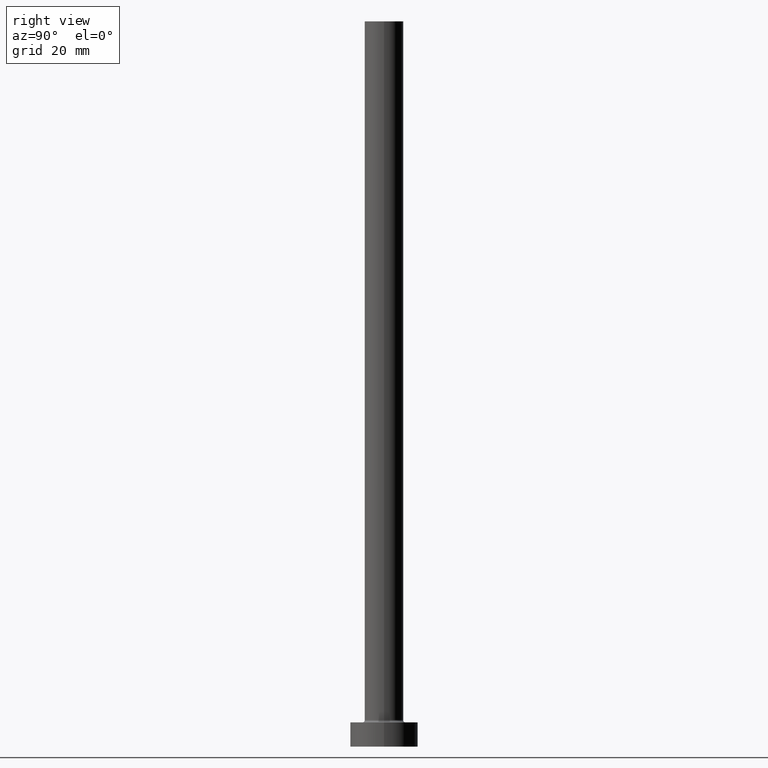
[diagram: clean part render]
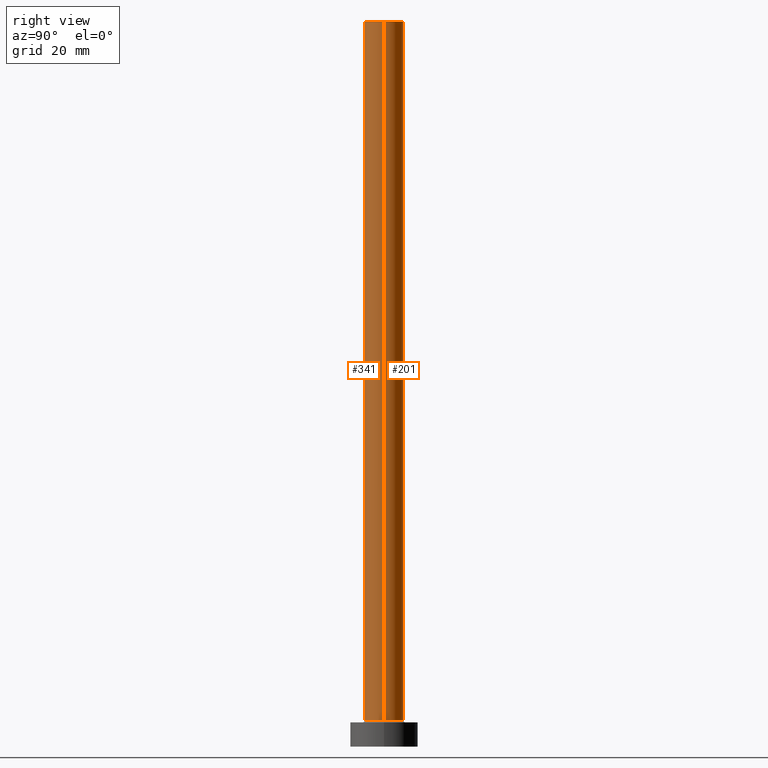
[diagram: same view with one multi-face feature highlighted, each face labeled with its STEP entity id]
A machine part, right view. The highlighted faces form ONE feature: a constant-radius fillet chain: 2 tangent blend faces with common blend radius 4 mm. The faces share edges in the B-rep.
Their STEP definitions:
[1] entity #341 (Cylinder):
#6 = DIRECTION ( 'NONE',  ( 0.000000000000000000, 0.000000000000000000, 1.000000000000000000 ) ) ;
#7 = AXIS2_PLACEMENT_3D ( 'NONE', #320, #432, #176 ) ;
#8 = VERTEX_POINT ( 'NONE', #226 ) ;
#13 = CIRCLE ( 'NONE', #411, 4.000000000000000000 ) ;
#22 = CARTESIAN_POINT ( 'NONE',  ( 0.000000000000000000, 0.000000000000000000, 5.500000000000005329 ) ) ;
#30 = AXIS2_PLACEMENT_3D ( 'NONE', #22, #419, #59 ) ;
#32 = CARTESIAN_POINT ( 'NONE',  ( -4.000000000000000000, 0.000000000000000000, 5.500000000000005329 ) ) ;
#37 = FACE_OUTER_BOUND ( 'NONE', #185, .T. ) ;
#41 = CARTESIAN_POINT ( 'NONE',  ( 0.000000000000000000, 0.000000000000000000, 150.0000000000000000 ) ) ;
#59 = DIRECTION ( 'NONE',  ( 1.000000000000000000, 0.000000000000000000, 0.000000000000000000 ) ) ;
#69 = LINE ( 'NONE', #181, #316 ) ;
#73 = LINE ( 'NONE', #244, #139 ) ;
#90 = ORIENTED_EDGE ( 'NONE', *, *, #255, .T. ) ;
#112 = ORIENTED_EDGE ( 'NONE', *, *, #293, .F. ) ;
#139 = VECTOR ( 'NONE', #393, 1000.000000000000000 ) ;
#171 = VERTEX_POINT ( 'NONE', #32 ) ;
#176 = DIRECTION ( 'NONE',  ( -1.000000000000000000, 0.000000000000000000, 0.000000000000000000 ) ) ;
#181 = CARTESIAN_POINT ( 'NONE',  ( 4.000000000000000000, 4.898587196589412829E-16, 150.0000000000000000 ) ) ;
#184 = DIRECTION ( 'NONE',  ( 1.000000000000000000, 0.000000000000000000, 0.000000000000000000 ) ) ;
#185 = EDGE_LOOP ( 'NONE', ( #206, #112, #90, #424 ) ) ;
#189 = EDGE_CURVE ( 'NONE', #171, #8, #348, .T. ) ;
#206 = ORIENTED_EDGE ( 'NONE', *, *, #283, .F. ) ;
#214 = CARTESIAN_POINT ( 'NONE',  ( -4.000000000000000000, 0.000000000000000000, 150.0000000000000000 ) ) ;
#226 = CARTESIAN_POINT ( 'NONE',  ( 4.000000000000000000, 4.898587196589412829E-16, 5.500000000000005329 ) ) ;
#244 = CARTESIAN_POINT ( 'NONE',  ( -4.000000000000000000, 0.000000000000000000, 150.0000000000000000 ) ) ;
#255 = EDGE_CURVE ( 'NONE', #388, #171, #73, .T. ) ;
#283 = EDGE_CURVE ( 'NONE', #420, #8, #69, .T. ) ;
#293 = EDGE_CURVE ( 'NONE', #388, #420, #13, .T. ) ;
#316 = VECTOR ( 'NONE', #430, 1000.000000000000000 ) ;
#320 = CARTESIAN_POINT ( 'NONE',  ( 0.000000000000000000, 0.000000000000000000, 150.0000000000000000 ) ) ;
#341 = ADVANCED_FACE ( 'NONE', ( #37 ), #361, .T. ) ;
#348 = CIRCLE ( 'NONE', #30, 4.000000000000000000 ) ;
#361 = CYLINDRICAL_SURFACE ( 'NONE', #7, 4.000000000000000000 ) ;
#368 = CARTESIAN_POINT ( 'NONE',  ( 4.000000000000000000, 4.898587196589412829E-16, 150.0000000000000000 ) ) ;
#388 = VERTEX_POINT ( 'NONE', #214 ) ;
#393 = DIRECTION ( 'NONE',  ( -0.000000000000000000, -0.000000000000000000, -1.000000000000000000 ) ) ;
#411 = AXIS2_PLACEMENT_3D ( 'NONE', #41, #6, #184 ) ;
#419 = DIRECTION ( 'NONE',  ( 0.000000000000000000, 0.000000000000000000, 1.000000000000000000 ) ) ;
#420 = VERTEX_POINT ( 'NONE', #368 ) ;
#424 = ORIENTED_EDGE ( 'NONE', *, *, #189, .T. ) ;
#430 = DIRECTION ( 'NONE',  ( -0.000000000000000000, -0.000000000000000000, -1.000000000000000000 ) ) ;
#432 = DIRECTION ( 'NONE',  ( -0.000000000000000000, -0.000000000000000000, -1.000000000000000000 ) ) ;
[2] entity #201 (Cylinder):
#8 = VERTEX_POINT ( 'NONE', #226 ) ;
#20 = AXIS2_PLACEMENT_3D ( 'NONE', #268, #233, #228 ) ;
#32 = CARTESIAN_POINT ( 'NONE',  ( -4.000000000000000000, 0.000000000000000000, 5.500000000000005329 ) ) ;
#69 = LINE ( 'NONE', #181, #316 ) ;
#73 = LINE ( 'NONE', #244, #139 ) ;
#115 = CARTESIAN_POINT ( 'NONE',  ( 0.000000000000000000, 0.000000000000000000, 5.500000000000005329 ) ) ;
#139 = VECTOR ( 'NONE', #393, 1000.000000000000000 ) ;
#164 = DIRECTION ( 'NONE',  ( -1.000000000000000000, 0.000000000000000000, 0.000000000000000000 ) ) ;
#171 = VERTEX_POINT ( 'NONE', #32 ) ;
#175 = ORIENTED_EDGE ( 'NONE', *, *, #255, .F. ) ;
#181 = CARTESIAN_POINT ( 'NONE',  ( 4.000000000000000000, 4.898587196589412829E-16, 150.0000000000000000 ) ) ;
#201 = ADVANCED_FACE ( 'NONE', ( #446 ), #455, .T. ) ;
#214 = CARTESIAN_POINT ( 'NONE',  ( -4.000000000000000000, 0.000000000000000000, 150.0000000000000000 ) ) ;
#221 = EDGE_CURVE ( 'NONE', #420, #388, #460, .T. ) ;
#226 = CARTESIAN_POINT ( 'NONE',  ( 4.000000000000000000, 4.898587196589412829E-16, 5.500000000000005329 ) ) ;
#228 = DIRECTION ( 'NONE',  ( 1.000000000000000000, 0.000000000000000000, 0.000000000000000000 ) ) ;
#230 = DIRECTION ( 'NONE',  ( -0.000000000000000000, -0.000000000000000000, -1.000000000000000000 ) ) ;
#233 = DIRECTION ( 'NONE',  ( 0.000000000000000000, 0.000000000000000000, 1.000000000000000000 ) ) ;
#235 = CARTESIAN_POINT ( 'NONE',  ( 0.000000000000000000, 0.000000000000000000, 150.0000000000000000 ) ) ;
#243 = ORIENTED_EDGE ( 'NONE', *, *, #457, .T. ) ;
#244 = CARTESIAN_POINT ( 'NONE',  ( -4.000000000000000000, 0.000000000000000000, 150.0000000000000000 ) ) ;
#250 = CIRCLE ( 'NONE', #380, 4.000000000000000000 ) ;
#255 = EDGE_CURVE ( 'NONE', #388, #171, #73, .T. ) ;
#268 = CARTESIAN_POINT ( 'NONE',  ( 0.000000000000000000, 0.000000000000000000, 150.0000000000000000 ) ) ;
#283 = EDGE_CURVE ( 'NONE', #420, #8, #69, .T. ) ;
#297 = DIRECTION ( 'NONE',  ( 1.000000000000000000, 0.000000000000000000, 0.000000000000000000 ) ) ;
#314 = EDGE_LOOP ( 'NONE', ( #395, #410, #243, #175 ) ) ;
#316 = VECTOR ( 'NONE', #430, 1000.000000000000000 ) ;
#368 = CARTESIAN_POINT ( 'NONE',  ( 4.000000000000000000, 4.898587196589412829E-16, 150.0000000000000000 ) ) ;
#371 = DIRECTION ( 'NONE',  ( 0.000000000000000000, 0.000000000000000000, 1.000000000000000000 ) ) ;
#380 = AXIS2_PLACEMENT_3D ( 'NONE', #115, #371, #297 ) ;
#388 = VERTEX_POINT ( 'NONE', #214 ) ;
#393 = DIRECTION ( 'NONE',  ( -0.000000000000000000, -0.000000000000000000, -1.000000000000000000 ) ) ;
#395 = ORIENTED_EDGE ( 'NONE', *, *, #221, .F. ) ;
#410 = ORIENTED_EDGE ( 'NONE', *, *, #283, .T. ) ;
#420 = VERTEX_POINT ( 'NONE', #368 ) ;
#430 = DIRECTION ( 'NONE',  ( -0.000000000000000000, -0.000000000000000000, -1.000000000000000000 ) ) ;
#445 = AXIS2_PLACEMENT_3D ( 'NONE', #235, #230, #164 ) ;
#446 = FACE_OUTER_BOUND ( 'NONE', #314, .T. ) ;
#455 = CYLINDRICAL_SURFACE ( 'NONE', #445, 4.000000000000000000 ) ;
#457 = EDGE_CURVE ( 'NONE', #8, #171, #250, .T. ) ;
#460 = CIRCLE ( 'NONE', #20, 4.000000000000000000 ) ;